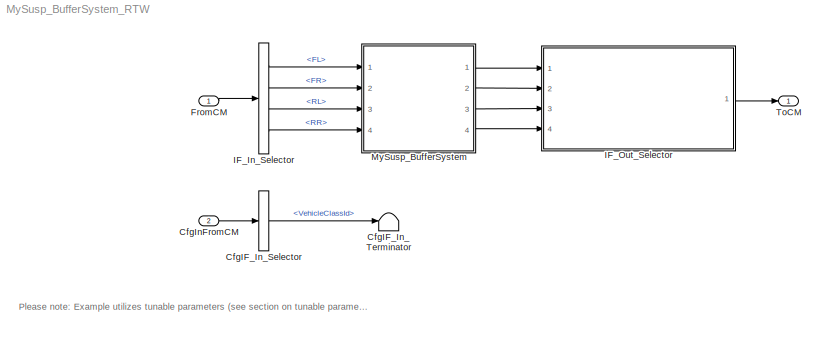
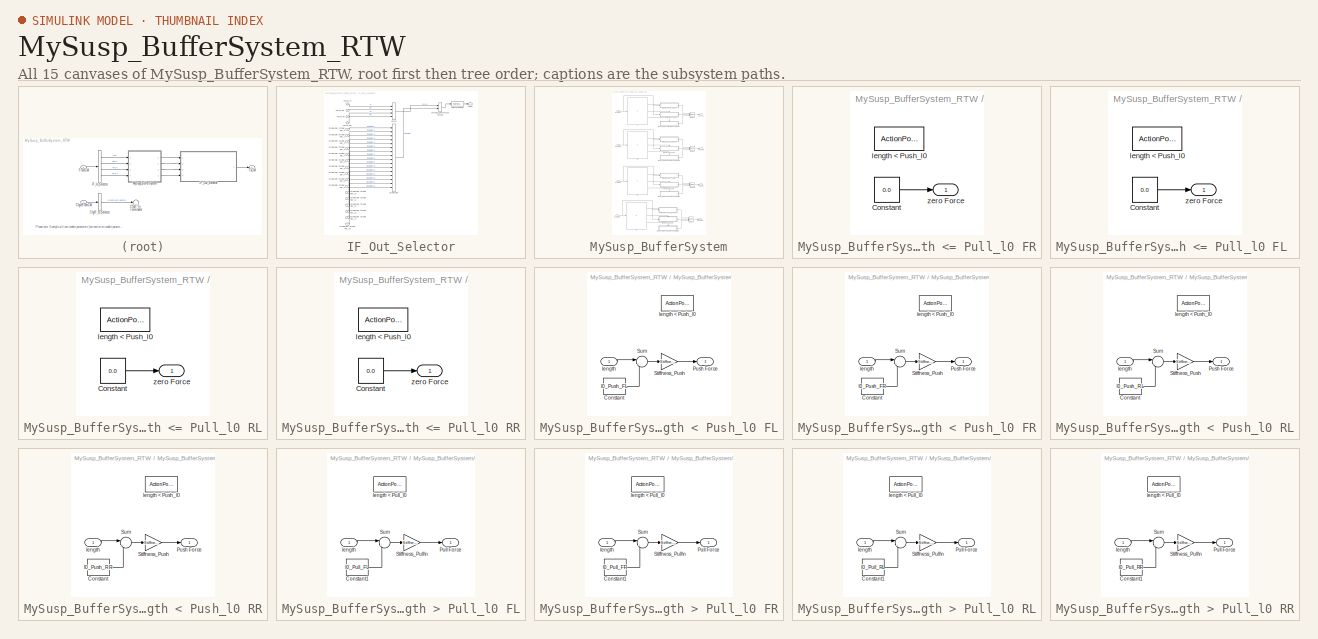
[diagram: thumbnail index - all 15 canvases of the model, root first then tree order]
MODEL MySusp_BufferSystem_RTW
KIND model
CONFIG InitFcn = vehicle = 'Car'; if ~length(which('cmself')), cmenv; end\nMySusp_BufferSystem_RTW_bus
CONFIG PreLoadFcn = vehicle = 'Car'; if ~length(which('cmself')), cmenv; end\nMySusp_BufferSystem_RTW_bus\nMySusp_BufferSystem_RTW_params
BLOCK [BusSelector] CfgIF_In_Selector
  OutputSignals = VehicleClassId
  Ports = [1, 1]
  SID = 9
BLOCK [Terminator] CfgIF_In_Terminator
  SID = 10
BLOCK [Inport] CfgInFromCM
  OutDataTypeStr = Bus: cmSusp_BufferSystemCfgIn
  Port = 2
  SID = 8
BLOCK [Inport] FromCM
  OutDataTypeStr = Bus: cmSusp_BufferSystemIn
  SID = 1
BLOCK [BusSelector] IF_In_Selector
  OutputSignals = length.FL,length.FR,length.RL,length.RR
  Ports = [1, 4]
  SID = 2
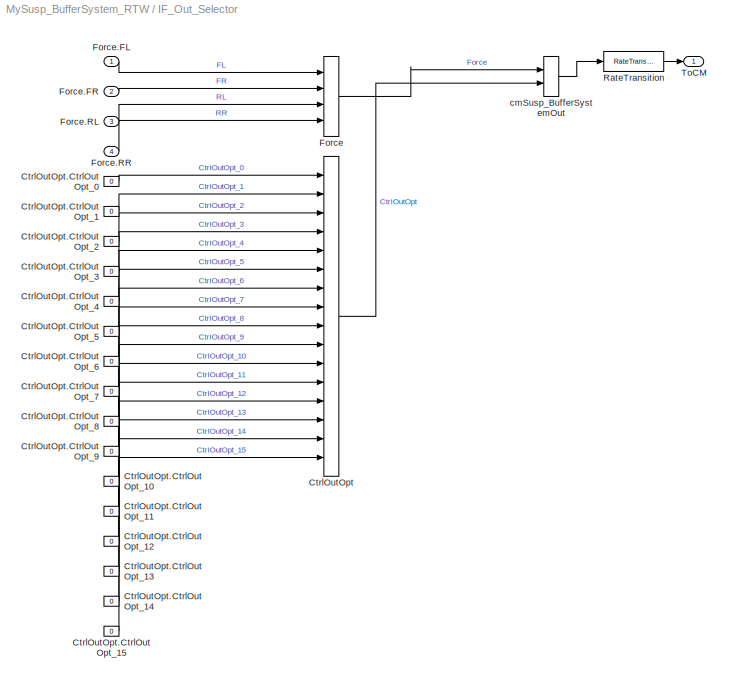
BLOCK [SubSystem] IF_Out_Selector
  OpenFcn = cmSignalSelect('SignalSelection_CB',gcb)
  Ports = [4, 1]
  RequestExecContextInheritance = off
  SID = 5
  UserData = DataTag0
  UserDataPersistent = on
BLOCK [BusCreator] IF_Out_Selector/CtrlOutOpt
  InheritFromInputs = on
  Inputs = 16
  Ports = [16, 1]
  SID = 17
BLOCK [Constant] IF_Out_Selector/CtrlOutOpt.CtrlOutOpt_0
  SID = 18
  Value = 0
BLOCK [Constant] IF_Out_Selector/CtrlOutOpt.CtrlOutOpt_1
  SID = 19
  Value = 0
BLOCK [Constant] IF_Out_Selector/CtrlOutOpt.CtrlOutOpt_10
  SID = 28
  Value = 0
BLOCK [Constant] IF_Out_Selector/CtrlOutOpt.CtrlOutOpt_11
  SID = 29
  Value = 0
BLOCK [Constant] IF_Out_Selector/CtrlOutOpt.CtrlOutOpt_12
  SID = 30
  Value = 0
BLOCK [Constant] IF_Out_Selector/CtrlOutOpt.CtrlOutOpt_13
  SID = 31
  Value = 0
BLOCK [Constant] IF_Out_Selector/CtrlOutOpt.CtrlOutOpt_14
  SID = 32
  Value = 0
BLOCK [Constant] IF_Out_Selector/CtrlOutOpt.CtrlOutOpt_15
  SID = 33
  Value = 0
BLOCK [Constant] IF_Out_Selector/CtrlOutOpt.CtrlOutOpt_2
  SID = 20
  Value = 0
BLOCK [Constant] IF_Out_Selector/CtrlOutOpt.CtrlOutOpt_3
  SID = 21
  Value = 0
BLOCK [Constant] IF_Out_Selector/CtrlOutOpt.CtrlOutOpt_4
  SID = 22
  Value = 0
BLOCK [Constant] IF_Out_Selector/CtrlOutOpt.CtrlOutOpt_5
  SID = 23
  Value = 0
BLOCK [Constant] IF_Out_Selector/CtrlOutOpt.CtrlOutOpt_6
  SID = 24
  Value = 0
BLOCK [Constant] IF_Out_Selector/CtrlOutOpt.CtrlOutOpt_7
  SID = 25
  Value = 0
BLOCK [Constant] IF_Out_Selector/CtrlOutOpt.CtrlOutOpt_8
  SID = 26
  Value = 0
BLOCK [Constant] IF_Out_Selector/CtrlOutOpt.CtrlOutOpt_9
  SID = 27
  Value = 0
BLOCK [BusCreator] IF_Out_Selector/Force
  InheritFromInputs = on
  Inputs = 4
  Ports = [4, 1]
  SID = 12
BLOCK [Inport] IF_Out_Selector/Force.FL
  SID = 34
BLOCK [Inport] IF_Out_Selector/Force.FR
  Port = 2
  SID = 35
BLOCK [Inport] IF_Out_Selector/Force.RL
  Port = 3
  SID = 36
BLOCK [Inport] IF_Out_Selector/Force.RR
  Port = 4
  SID = 37
BLOCK [RateTransition] IF_Out_Selector/RateTransition
  OutPortSampleTime = str2num(get_param(bdroot,'FixedStep'))
  SID = 6
BLOCK [Outport] IF_Out_Selector/ToCM
  SID = 7
BLOCK [BusCreator] IF_Out_Selector/cmSusp_BufferSystemOut
  InheritFromInputs = on
  Inputs = 2
  Ports = [2, 1]
  SID = 11
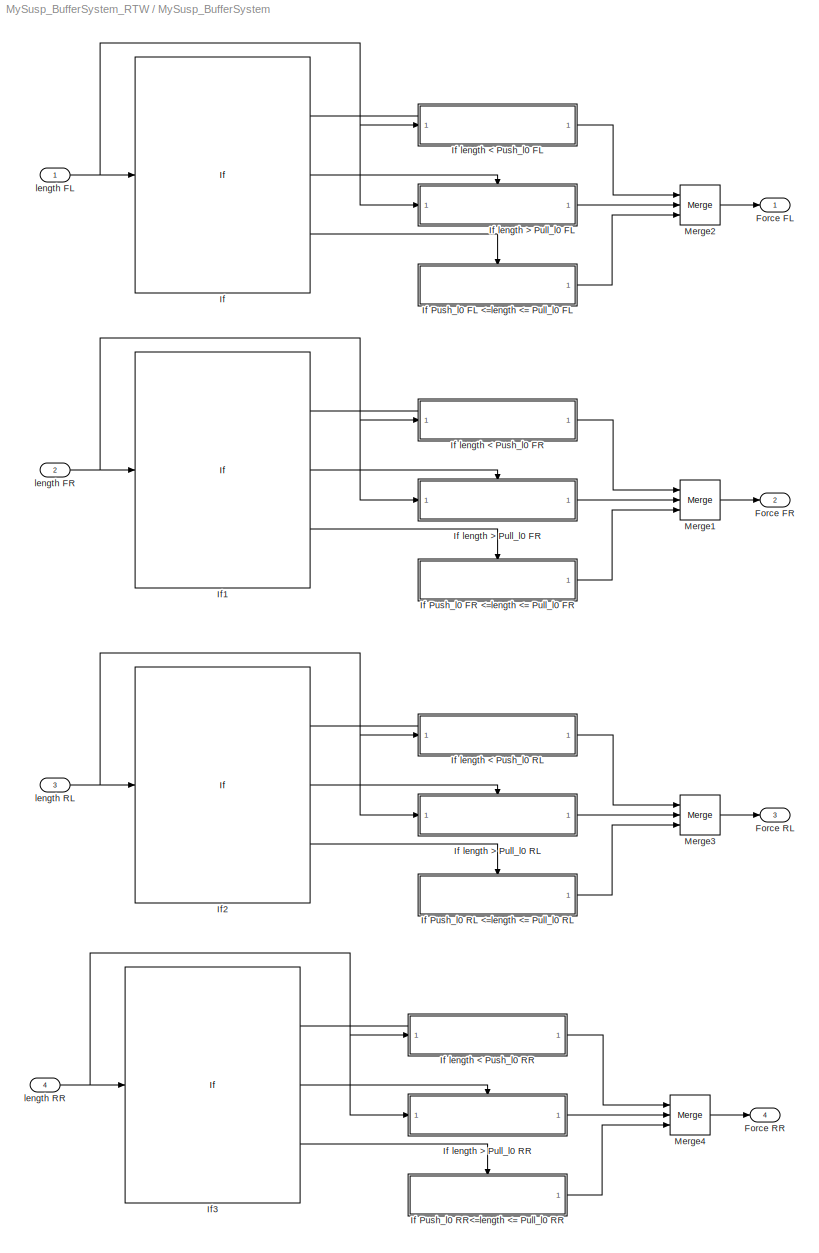
BLOCK [SubSystem] MySusp_BufferSystem
  Ports = [4, 4]
  RequestExecContextInheritance = off
  SID = 38
BLOCK [Outport] MySusp_BufferSystem/Force FL
  SID = 123
  VectorParamsAs1DForOutWhenUnconnected = off
BLOCK [Outport] MySusp_BufferSystem/Force FR
  Port = 2
  SID = 124
  VectorParamsAs1DForOutWhenUnconnected = off
BLOCK [Outport] MySusp_BufferSystem/Force RL
  Port = 3
  SID = 125
  VectorParamsAs1DForOutWhenUnconnected = off
BLOCK [Outport] MySusp_BufferSystem/Force RR
  Port = 4
  SID = 126
  VectorParamsAs1DForOutWhenUnconnected = off
BLOCK [If] MySusp_BufferSystem/If
  ElseIfExpressions = u1 > l0_Pull_FL
  IfExpression = u1 < l0_Push_FL
  Ports = [1, 3]
  SID = 43
BLOCK [SubSystem] MySusp_BufferSystem/If Push_l0  FR <=length <= Pull_l0 FR
  Ports = [0, 1, 0, 0, 0, 0, 0, 1]
  RequestExecContextInheritance = off
  SID = 44
  TreatAsAtomicUnit = on
BLOCK [Constant] MySusp_BufferSystem/If Push_l0  FR <=length <= Pull_l0 FR/Constant
  SID = 46
  Value = 0.0
BLOCK [ActionPort] MySusp_BufferSystem/If Push_l0  FR <=length <= Pull_l0 FR/length < Push_l0
  SID = 45
BLOCK [Outport] MySusp_BufferSystem/If Push_l0  FR <=length <= Pull_l0 FR/zero Force
  InitialOutput = 0
  SID = 47
  VectorParamsAs1DForOutWhenUnconnected = off
BLOCK [SubSystem] MySusp_BufferSystem/If Push_l0 FL <=length <= Pull_l0 FL 
  Ports = [0, 1, 0, 0, 0, 0, 0, 1]
  RequestExecContextInheritance = off
  SID = 48
  TreatAsAtomicUnit = on
BLOCK [Constant] MySusp_BufferSystem/If Push_l0 FL <=length <= Pull_l0 FL /Constant
  SID = 50
  Value = 0.0
BLOCK [ActionPort] MySusp_BufferSystem/If Push_l0 FL <=length <= Pull_l0 FL /length < Push_l0
  SID = 49
BLOCK [Outport] MySusp_BufferSystem/If Push_l0 FL <=length <= Pull_l0 FL /zero Force
  InitialOutput = 0
  SID = 51
  VectorParamsAs1DForOutWhenUnconnected = off
BLOCK [SubSystem] MySusp_BufferSystem/If Push_l0 RL <=length <= Pull_l0 RL
  Ports = [0, 1, 0, 0, 0, 0, 0, 1]
  RequestExecContextInheritance = off
  SID = 52
  TreatAsAtomicUnit = on
BLOCK [Constant] MySusp_BufferSystem/If Push_l0 RL <=length <= Pull_l0 RL/Constant
  SID = 54
  Value = 0.0
BLOCK [ActionPort] MySusp_BufferSystem/If Push_l0 RL <=length <= Pull_l0 RL/length < Push_l0
  SID = 53
BLOCK [Outport] MySusp_BufferSystem/If Push_l0 RL <=length <= Pull_l0 RL/zero Force
  InitialOutput = 0
  SID = 55
  VectorParamsAs1DForOutWhenUnconnected = off
BLOCK [SubSystem] MySusp_BufferSystem/If Push_l0 RR<=length <= Pull_l0 RR
  Ports = [0, 1, 0, 0, 0, 0, 0, 1]
  RequestExecContextInheritance = off
  SID = 56
  TreatAsAtomicUnit = on
BLOCK [Constant] MySusp_BufferSystem/If Push_l0 RR<=length <= Pull_l0 RR/Constant
  SID = 58
  Value = 0.0
BLOCK [ActionPort] MySusp_BufferSystem/If Push_l0 RR<=length <= Pull_l0 RR/length < Push_l0
  SID = 57
BLOCK [Outport] MySusp_BufferSystem/If Push_l0 RR<=length <= Pull_l0 RR/zero Force
  InitialOutput = 0
  SID = 59
  VectorParamsAs1DForOutWhenUnconnected = off
BLOCK [SubSystem] MySusp_BufferSystem/If length < Push_l0 FL
  Ports = [1, 1, 0, 0, 0, 0, 0, 1]
  RequestExecContextInheritance = off
  SID = 60
  TreatAsAtomicUnit = on
BLOCK [Constant] MySusp_BufferSystem/If length < Push_l0 FL/Constant
  SID = 63
  Value = l0_Push_FL
BLOCK [Outport] MySusp_BufferSystem/If length < Push_l0 FL/Push Force
  InitialOutput = 0
  SID = 66
  VectorParamsAs1DForOutWhenUnconnected = off
BLOCK [Gain] MySusp_BufferSystem/If length < Push_l0 FL/Stiffness_Push
  Gain = Stiffness_Push_FL
  SID = 64
BLOCK [Sum] MySusp_BufferSystem/If length < Push_l0 FL/Sum
  Inputs = |-+
  Ports = [2, 1]
  SID = 65
BLOCK [Inport] MySusp_BufferSystem/If length < Push_l0 FL/length
  SID = 61
BLOCK [ActionPort] MySusp_BufferSystem/If length < Push_l0 FL/length < Push_l0
  SID = 62
BLOCK [SubSystem] MySusp_BufferSystem/If length < Push_l0 FR
  Ports = [1, 1, 0, 0, 0, 0, 0, 1]
  RequestExecContextInheritance = off
  SID = 67
  TreatAsAtomicUnit = on
BLOCK [Constant] MySusp_BufferSystem/If length < Push_l0 FR/Constant
  SID = 70
  Value = l0_Push_FR
BLOCK [Outport] MySusp_BufferSystem/If length < Push_l0 FR/Push Force
  InitialOutput = 0
  SID = 73
  VectorParamsAs1DForOutWhenUnconnected = off
BLOCK [Gain] MySusp_BufferSystem/If length < Push_l0 FR/Stiffness_Push
  Gain = Stiffness_Push_FR
  SID = 71
BLOCK [Sum] MySusp_BufferSystem/If length < Push_l0 FR/Sum
  Inputs = |-+
  Ports = [2, 1]
  SID = 72
BLOCK [Inport] MySusp_BufferSystem/If length < Push_l0 FR/length
  SID = 68
BLOCK [ActionPort] MySusp_BufferSystem/If length < Push_l0 FR/length < Push_l0
  SID = 69
BLOCK [SubSystem] MySusp_BufferSystem/If length < Push_l0 RL
  Ports = [1, 1, 0, 0, 0, 0, 0, 1]
  RequestExecContextInheritance = off
  SID = 74
  TreatAsAtomicUnit = on
BLOCK [Constant] MySusp_BufferSystem/If length < Push_l0 RL/Constant
  SID = 77
  Value = l0_Push_RL
BLOCK [Outport] MySusp_BufferSystem/If length < Push_l0 RL/Push Force
  InitialOutput = 0
  SID = 80
  VectorParamsAs1DForOutWhenUnconnected = off
BLOCK [Gain] MySusp_BufferSystem/If length < Push_l0 RL/Stiffness_Push
  Gain = Stiffness_Push_RL
  SID = 78
BLOCK [Sum] MySusp_BufferSystem/If length < Push_l0 RL/Sum
  Inputs = |-+
  Ports = [2, 1]
  SID = 79
BLOCK [Inport] MySusp_BufferSystem/If length < Push_l0 RL/length
  SID = 75
BLOCK [ActionPort] MySusp_BufferSystem/If length < Push_l0 RL/length < Push_l0
  SID = 76
BLOCK [SubSystem] MySusp_BufferSystem/If length < Push_l0 RR
  Ports = [1, 1, 0, 0, 0, 0, 0, 1]
  RequestExecContextInheritance = off
  SID = 81
  TreatAsAtomicUnit = on
BLOCK [Constant] MySusp_BufferSystem/If length < Push_l0 RR/Constant
  SID = 84
  Value = l0_Push_RR
BLOCK [Outport] MySusp_BufferSystem/If length < Push_l0 RR/Push Force
  InitialOutput = 0
  SID = 87
  VectorParamsAs1DForOutWhenUnconnected = off
BLOCK [Gain] MySusp_BufferSystem/If length < Push_l0 RR/Stiffness_Push
  Gain = Stiffness_Push_RR
  SID = 85
BLOCK [Sum] MySusp_BufferSystem/If length < Push_l0 RR/Sum
  Inputs = |-+
  Ports = [2, 1]
  SID = 86
BLOCK [Inport] MySusp_BufferSystem/If length < Push_l0 RR/length
  SID = 82
BLOCK [ActionPort] MySusp_BufferSystem/If length < Push_l0 RR/length < Push_l0
  SID = 83
BLOCK [SubSystem] MySusp_BufferSystem/If length > Pull_l0 FL
  Ports = [1, 1, 0, 0, 0, 0, 0, 1]
  RequestExecContextInheritance = off
  SID = 88
  TreatAsAtomicUnit = on
BLOCK [Constant] MySusp_BufferSystem/If length > Pull_l0 FL/Constant1
  SID = 91
  Value = l0_Pull_FL
BLOCK [Outport] MySusp_BufferSystem/If length > Pull_l0 FL/Pull Force
  InitialOutput = 0
  SID = 94
  VectorParamsAs1DForOutWhenUnconnected = off
BLOCK [Gain] MySusp_BufferSystem/If length > Pull_l0 FL/Stiffness_Pull\n
  Gain = Stiffness_Pull_FL
  SID = 92
BLOCK [Sum] MySusp_BufferSystem/If length > Pull_l0 FL/Sum
  Inputs = |-+
  Ports = [2, 1]
  SID = 93
BLOCK [Inport] MySusp_BufferSystem/If length > Pull_l0 FL/length
  SID = 89
BLOCK [ActionPort] MySusp_BufferSystem/If length > Pull_l0 FL/length < Pull_l0
  SID = 90
BLOCK [SubSystem] MySusp_BufferSystem/If length > Pull_l0 FR
  Ports = [1, 1, 0, 0, 0, 0, 0, 1]
  RequestExecContextInheritance = off
  SID = 95
  TreatAsAtomicUnit = on
BLOCK [Constant] MySusp_BufferSystem/If length > Pull_l0 FR/Constant1
  SID = 98
  Value = l0_Pull_FR
BLOCK [Outport] MySusp_BufferSystem/If length > Pull_l0 FR/Pull Force
  InitialOutput = 0
  SID = 101
  VectorParamsAs1DForOutWhenUnconnected = off
BLOCK [Gain] MySusp_BufferSystem/If length > Pull_l0 FR/Stiffness_Pull\n
  Gain = Stiffness_Pull_FR
  SID = 99
BLOCK [Sum] MySusp_BufferSystem/If length > Pull_l0 FR/Sum
  Inputs = |-+
  Ports = [2, 1]
  SID = 100
BLOCK [Inport] MySusp_BufferSystem/If length > Pull_l0 FR/length
  SID = 96
BLOCK [ActionPort] MySusp_BufferSystem/If length > Pull_l0 FR/length < Pull_l0
  SID = 97
BLOCK [SubSystem] MySusp_BufferSystem/If length > Pull_l0 RL
  Ports = [1, 1, 0, 0, 0, 0, 0, 1]
  RequestExecContextInheritance = off
  SID = 102
  TreatAsAtomicUnit = on
BLOCK [Constant] MySusp_BufferSystem/If length > Pull_l0 RL/Constant1
  SID = 105
  Value = l0_Pull_RL
BLOCK [Outport] MySusp_BufferSystem/If length > Pull_l0 RL/Pull Force
  InitialOutput = 0
  SID = 108
  VectorParamsAs1DForOutWhenUnconnected = off
BLOCK [Gain] MySusp_BufferSystem/If length > Pull_l0 RL/Stiffness_Pull\n
  Gain = Stiffness_Pull_RL
  SID = 106
BLOCK [Sum] MySusp_BufferSystem/If length > Pull_l0 RL/Sum
  Inputs = |-+
  Ports = [2, 1]
  SID = 107
BLOCK [Inport] MySusp_BufferSystem/If length > Pull_l0 RL/length
  SID = 103
BLOCK [ActionPort] MySusp_BufferSystem/If length > Pull_l0 RL/length < Pull_l0
  SID = 104
BLOCK [SubSystem] MySusp_BufferSystem/If length > Pull_l0 RR
  Ports = [1, 1, 0, 0, 0, 0, 0, 1]
  RequestExecContextInheritance = off
  SID = 109
  TreatAsAtomicUnit = on
BLOCK [Constant] MySusp_BufferSystem/If length > Pull_l0 RR/Constant1
  SID = 112
  Value = l0_Pull_RR
BLOCK [Outport] MySusp_BufferSystem/If length > Pull_l0 RR/Pull Force
  InitialOutput = 0
  SID = 115
  VectorParamsAs1DForOutWhenUnconnected = off
BLOCK [Gain] MySusp_BufferSystem/If length > Pull_l0 RR/Stiffness_Pull\n
  Gain = Stiffness_Pull_RR
  SID = 113
BLOCK [Sum] MySusp_BufferSystem/If length > Pull_l0 RR/Sum
  Inputs = |-+
  Ports = [2, 1]
  SID = 114
BLOCK [Inport] MySusp_BufferSystem/If length > Pull_l0 RR/length
  SID = 110
BLOCK [ActionPort] MySusp_BufferSystem/If length > Pull_l0 RR/length < Pull_l0
  SID = 111
BLOCK [If] MySusp_BufferSystem/If1
  ElseIfExpressions = u1 > l0_Pull_FR
  IfExpression = u1 < l0_Push_FR
  Ports = [1, 3]
  SID = 116
BLOCK [If] MySusp_BufferSystem/If2
  ElseIfExpressions = u1 > l0_Pull_RL
  IfExpression = u1 < l0_Push_RL
  Ports = [1, 3]
  SID = 117
BLOCK [If] MySusp_BufferSystem/If3
  ElseIfExpressions = u1 > l0_Pull_RR
  IfExpression = u1 < l0_Push_RR
  Ports = [1, 3]
  SID = 118
BLOCK [Merge] MySusp_BufferSystem/Merge1
  Inputs = 3
  Ports = [3, 1]
  SID = 119
BLOCK [Merge] MySusp_BufferSystem/Merge2
  Inputs = 3
  Ports = [3, 1]
  SID = 120
BLOCK [Merge] MySusp_BufferSystem/Merge3
  Inputs = 3
  Ports = [3, 1]
  SID = 121
BLOCK [Merge] MySusp_BufferSystem/Merge4
  Inputs = 3
  Ports = [3, 1]
  SID = 122
BLOCK [Inport] MySusp_BufferSystem/length FL
  SID = 39
BLOCK [Inport] MySusp_BufferSystem/length FR
  Port = 2
  SID = 40
BLOCK [Inport] MySusp_BufferSystem/length RL
  Port = 3
  SID = 41
BLOCK [Inport] MySusp_BufferSystem/length RR
  Port = 4
  SID = 42
BLOCK [Outport] ToCM
  OutDataTypeStr = Bus: cmSusp_BufferSystemOut
  SID = 4
ANNOTATION (root): \n \n Please note: Example utilizes tunable parameters (see section on tunable parameters in the Programmers Guide). \n \n For user models of the class Susp_BufferSystem at least one modelclass-specific parameter (*.TimeInvariant) needs to be specified in the "Modelclass-specific Parameters" dialog of the CarMaker GUI.
LINE CfgIF_In_Selector:1 -> CfgIF_In_Terminator:1
LINE CfgInFromCM:1 -> CfgIF_In_Selector:1
LINE FromCM:1 -> IF_In_Selector:1
LINE IF_In_Selector:1 -> MySusp_BufferSystem:1
LINE IF_In_Selector:2 -> MySusp_BufferSystem:2
LINE IF_In_Selector:3 -> MySusp_BufferSystem:3
LINE IF_In_Selector:4 -> MySusp_BufferSystem:4
LINE IF_Out_Selector/CtrlOutOpt.CtrlOutOpt_0:1 -> IF_Out_Selector/CtrlOutOpt:1
LINE IF_Out_Selector/CtrlOutOpt.CtrlOutOpt_10:1 -> IF_Out_Selector/CtrlOutOpt:11
LINE IF_Out_Selector/CtrlOutOpt.CtrlOutOpt_11:1 -> IF_Out_Selector/CtrlOutOpt:12
LINE IF_Out_Selector/CtrlOutOpt.CtrlOutOpt_12:1 -> IF_Out_Selector/CtrlOutOpt:13
LINE IF_Out_Selector/CtrlOutOpt.CtrlOutOpt_13:1 -> IF_Out_Selector/CtrlOutOpt:14
LINE IF_Out_Selector/CtrlOutOpt.CtrlOutOpt_14:1 -> IF_Out_Selector/CtrlOutOpt:15
LINE IF_Out_Selector/CtrlOutOpt.CtrlOutOpt_15:1 -> IF_Out_Selector/CtrlOutOpt:16
LINE IF_Out_Selector/CtrlOutOpt.CtrlOutOpt_1:1 -> IF_Out_Selector/CtrlOutOpt:2
LINE IF_Out_Selector/CtrlOutOpt.CtrlOutOpt_2:1 -> IF_Out_Selector/CtrlOutOpt:3
LINE IF_Out_Selector/CtrlOutOpt.CtrlOutOpt_3:1 -> IF_Out_Selector/CtrlOutOpt:4
LINE IF_Out_Selector/CtrlOutOpt.CtrlOutOpt_4:1 -> IF_Out_Selector/CtrlOutOpt:5
LINE IF_Out_Selector/CtrlOutOpt.CtrlOutOpt_5:1 -> IF_Out_Selector/CtrlOutOpt:6
LINE IF_Out_Selector/CtrlOutOpt.CtrlOutOpt_6:1 -> IF_Out_Selector/CtrlOutOpt:7
LINE IF_Out_Selector/CtrlOutOpt.CtrlOutOpt_7:1 -> IF_Out_Selector/CtrlOutOpt:8
LINE IF_Out_Selector/CtrlOutOpt.CtrlOutOpt_8:1 -> IF_Out_Selector/CtrlOutOpt:9
LINE IF_Out_Selector/CtrlOutOpt.CtrlOutOpt_9:1 -> IF_Out_Selector/CtrlOutOpt:10
LINE IF_Out_Selector/CtrlOutOpt:1 -> IF_Out_Selector/cmSusp_BufferSystemOut:2
LINE IF_Out_Selector/Force.FL:1 -> IF_Out_Selector/Force:1
LINE IF_Out_Selector/Force.FR:1 -> IF_Out_Selector/Force:2
LINE IF_Out_Selector/Force.RL:1 -> IF_Out_Selector/Force:3
LINE IF_Out_Selector/Force.RR:1 -> IF_Out_Selector/Force:4
LINE IF_Out_Selector/Force:1 -> IF_Out_Selector/cmSusp_BufferSystemOut:1
LINE IF_Out_Selector/RateTransition:1 -> IF_Out_Selector/ToCM:1
LINE IF_Out_Selector/cmSusp_BufferSystemOut:1 -> IF_Out_Selector/RateTransition:1
LINE IF_Out_Selector:1 -> ToCM:1
LINE MySusp_BufferSystem/If Push_l0  FR <=length <= Pull_l0 FR/Constant:1 -> MySusp_BufferSystem/If Push_l0  FR <=length <= Pull_l0 FR/zero Force:1
LINE MySusp_BufferSystem/If Push_l0  FR <=length <= Pull_l0 FR:1 -> MySusp_BufferSystem/Merge1:3
LINE MySusp_BufferSystem/If Push_l0 FL <=length <= Pull_l0 FL /Constant:1 -> MySusp_BufferSystem/If Push_l0 FL <=length <= Pull_l0 FL /zero Force:1
LINE MySusp_BufferSystem/If Push_l0 FL <=length <= Pull_l0 FL :1 -> MySusp_BufferSystem/Merge2:3
LINE MySusp_BufferSystem/If Push_l0 RL <=length <= Pull_l0 RL/Constant:1 -> MySusp_BufferSystem/If Push_l0 RL <=length <= Pull_l0 RL/zero Force:1
LINE MySusp_BufferSystem/If Push_l0 RL <=length <= Pull_l0 RL:1 -> MySusp_BufferSystem/Merge3:3
LINE MySusp_BufferSystem/If Push_l0 RR<=length <= Pull_l0 RR/Constant:1 -> MySusp_BufferSystem/If Push_l0 RR<=length <= Pull_l0 RR/zero Force:1
LINE MySusp_BufferSystem/If Push_l0 RR<=length <= Pull_l0 RR:1 -> MySusp_BufferSystem/Merge4:3
LINE MySusp_BufferSystem/If length < Push_l0 FL/Constant:1 -> MySusp_BufferSystem/If length < Push_l0 FL/Sum:2
LINE MySusp_BufferSystem/If length < Push_l0 FL/Stiffness_Push:1 -> MySusp_BufferSystem/If length < Push_l0 FL/Push Force:1
LINE MySusp_BufferSystem/If length < Push_l0 FL/Sum:1 -> MySusp_BufferSystem/If length < Push_l0 FL/Stiffness_Push:1
LINE MySusp_BufferSystem/If length < Push_l0 FL/length:1 -> MySusp_BufferSystem/If length < Push_l0 FL/Sum:1
LINE MySusp_BufferSystem/If length < Push_l0 FL:1 -> MySusp_BufferSystem/Merge2:1
LINE MySusp_BufferSystem/If length < Push_l0 FR/Constant:1 -> MySusp_BufferSystem/If length < Push_l0 FR/Sum:2
LINE MySusp_BufferSystem/If length < Push_l0 FR/Stiffness_Push:1 -> MySusp_BufferSystem/If length < Push_l0 FR/Push Force:1
LINE MySusp_BufferSystem/If length < Push_l0 FR/Sum:1 -> MySusp_BufferSystem/If length < Push_l0 FR/Stiffness_Push:1
LINE MySusp_BufferSystem/If length < Push_l0 FR/length:1 -> MySusp_BufferSystem/If length < Push_l0 FR/Sum:1
LINE MySusp_BufferSystem/If length < Push_l0 FR:1 -> MySusp_BufferSystem/Merge1:1
LINE MySusp_BufferSystem/If length < Push_l0 RL/Constant:1 -> MySusp_BufferSystem/If length < Push_l0 RL/Sum:2
LINE MySusp_BufferSystem/If length < Push_l0 RL/Stiffness_Push:1 -> MySusp_BufferSystem/If length < Push_l0 RL/Push Force:1
LINE MySusp_BufferSystem/If length < Push_l0 RL/Sum:1 -> MySusp_BufferSystem/If length < Push_l0 RL/Stiffness_Push:1
LINE MySusp_BufferSystem/If length < Push_l0 RL/length:1 -> MySusp_BufferSystem/If length < Push_l0 RL/Sum:1
LINE MySusp_BufferSystem/If length < Push_l0 RL:1 -> MySusp_BufferSystem/Merge3:1
LINE MySusp_BufferSystem/If length < Push_l0 RR/Constant:1 -> MySusp_BufferSystem/If length < Push_l0 RR/Sum:2
LINE MySusp_BufferSystem/If length < Push_l0 RR/Stiffness_Push:1 -> MySusp_BufferSystem/If length < Push_l0 RR/Push Force:1
LINE MySusp_BufferSystem/If length < Push_l0 RR/Sum:1 -> MySusp_BufferSystem/If length < Push_l0 RR/Stiffness_Push:1
LINE MySusp_BufferSystem/If length < Push_l0 RR/length:1 -> MySusp_BufferSystem/If length < Push_l0 RR/Sum:1
LINE MySusp_BufferSystem/If length < Push_l0 RR:1 -> MySusp_BufferSystem/Merge4:1
LINE MySusp_BufferSystem/If length > Pull_l0 FL/Constant1:1 -> MySusp_BufferSystem/If length > Pull_l0 FL/Sum:2
LINE MySusp_BufferSystem/If length > Pull_l0 FL/Stiffness_Pull\n:1 -> MySusp_BufferSystem/If length > Pull_l0 FL/Pull Force:1
LINE MySusp_BufferSystem/If length > Pull_l0 FL/Sum:1 -> MySusp_BufferSystem/If length > Pull_l0 FL/Stiffness_Pull\n:1
LINE MySusp_BufferSystem/If length > Pull_l0 FL/length:1 -> MySusp_BufferSystem/If length > Pull_l0 FL/Sum:1
LINE MySusp_BufferSystem/If length > Pull_l0 FL:1 -> MySusp_BufferSystem/Merge2:2
LINE MySusp_BufferSystem/If length > Pull_l0 FR/Constant1:1 -> MySusp_BufferSystem/If length > Pull_l0 FR/Sum:2
LINE MySusp_BufferSystem/If length > Pull_l0 FR/Stiffness_Pull\n:1 -> MySusp_BufferSystem/If length > Pull_l0 FR/Pull Force:1
LINE MySusp_BufferSystem/If length > Pull_l0 FR/Sum:1 -> MySusp_BufferSystem/If length > Pull_l0 FR/Stiffness_Pull\n:1
LINE MySusp_BufferSystem/If length > Pull_l0 FR/length:1 -> MySusp_BufferSystem/If length > Pull_l0 FR/Sum:1
LINE MySusp_BufferSystem/If length > Pull_l0 FR:1 -> MySusp_BufferSystem/Merge1:2
LINE MySusp_BufferSystem/If length > Pull_l0 RL/Constant1:1 -> MySusp_BufferSystem/If length > Pull_l0 RL/Sum:2
LINE MySusp_BufferSystem/If length > Pull_l0 RL/Stiffness_Pull\n:1 -> MySusp_BufferSystem/If length > Pull_l0 RL/Pull Force:1
LINE MySusp_BufferSystem/If length > Pull_l0 RL/Sum:1 -> MySusp_BufferSystem/If length > Pull_l0 RL/Stiffness_Pull\n:1
LINE MySusp_BufferSystem/If length > Pull_l0 RL/length:1 -> MySusp_BufferSystem/If length > Pull_l0 RL/Sum:1
LINE MySusp_BufferSystem/If length > Pull_l0 RL:1 -> MySusp_BufferSystem/Merge3:2
LINE MySusp_BufferSystem/If length > Pull_l0 RR/Constant1:1 -> MySusp_BufferSystem/If length > Pull_l0 RR/Sum:2
LINE MySusp_BufferSystem/If length > Pull_l0 RR/Stiffness_Pull\n:1 -> MySusp_BufferSystem/If length > Pull_l0 RR/Pull Force:1
LINE MySusp_BufferSystem/If length > Pull_l0 RR/Sum:1 -> MySusp_BufferSystem/If length > Pull_l0 RR/Stiffness_Pull\n:1
LINE MySusp_BufferSystem/If length > Pull_l0 RR/length:1 -> MySusp_BufferSystem/If length > Pull_l0 RR/Sum:1
LINE MySusp_BufferSystem/If length > Pull_l0 RR:1 -> MySusp_BufferSystem/Merge4:2
LINE MySusp_BufferSystem/If1:1 -> MySusp_BufferSystem/If length < Push_l0 FR:ifaction
LINE MySusp_BufferSystem/If1:2 -> MySusp_BufferSystem/If length > Pull_l0 FR:ifaction
LINE MySusp_BufferSystem/If1:3 -> MySusp_BufferSystem/If Push_l0  FR <=length <= Pull_l0 FR:ifaction
LINE MySusp_BufferSystem/If2:1 -> MySusp_BufferSystem/If length < Push_l0 RL:ifaction
LINE MySusp_BufferSystem/If2:2 -> MySusp_BufferSystem/If length > Pull_l0 RL:ifaction
LINE MySusp_BufferSystem/If2:3 -> MySusp_BufferSystem/If Push_l0 RL <=length <= Pull_l0 RL:ifaction
LINE MySusp_BufferSystem/If3:1 -> MySusp_BufferSystem/If length < Push_l0 RR:ifaction
LINE MySusp_BufferSystem/If3:2 -> MySusp_BufferSystem/If length > Pull_l0 RR:ifaction
LINE MySusp_BufferSystem/If3:3 -> MySusp_BufferSystem/If Push_l0 RR<=length <= Pull_l0 RR:ifaction
LINE MySusp_BufferSystem/If:1 -> MySusp_BufferSystem/If length < Push_l0 FL:ifaction
LINE MySusp_BufferSystem/If:2 -> MySusp_BufferSystem/If length > Pull_l0 FL:ifaction
LINE MySusp_BufferSystem/If:3 -> MySusp_BufferSystem/If Push_l0 FL <=length <= Pull_l0 FL :ifaction
LINE MySusp_BufferSystem/Merge1:1 -> MySusp_BufferSystem/Force FR:1
LINE MySusp_BufferSystem/Merge2:1 -> MySusp_BufferSystem/Force FL:1
LINE MySusp_BufferSystem/Merge3:1 -> MySusp_BufferSystem/Force RL:1
LINE MySusp_BufferSystem/Merge4:1 -> MySusp_BufferSystem/Force RR:1
NET MySusp_BufferSystem/length FL:1 -> MySusp_BufferSystem/If length < Push_l0 FL:1, MySusp_BufferSystem/If length > Pull_l0 FL:1, MySusp_BufferSystem/If:1
NET MySusp_BufferSystem/length FR:1 -> MySusp_BufferSystem/If length < Push_l0 FR:1, MySusp_BufferSystem/If length > Pull_l0 FR:1, MySusp_BufferSystem/If1:1
NET MySusp_BufferSystem/length RL:1 -> MySusp_BufferSystem/If length < Push_l0 RL:1, MySusp_BufferSystem/If length > Pull_l0 RL:1, MySusp_BufferSystem/If2:1
NET MySusp_BufferSystem/length RR:1 -> MySusp_BufferSystem/If length < Push_l0 RR:1, MySusp_BufferSystem/If length > Pull_l0 RR:1, MySusp_BufferSystem/If3:1
LINE MySusp_BufferSystem:1 -> IF_Out_Selector:1
LINE MySusp_BufferSystem:2 -> IF_Out_Selector:2
LINE MySusp_BufferSystem:3 -> IF_Out_Selector:3
LINE MySusp_BufferSystem:4 -> IF_Out_Selector:4
note: NET lines group one-source signal fan-out (src -> all destinations, sorted); 1:1 wires keep LINE
